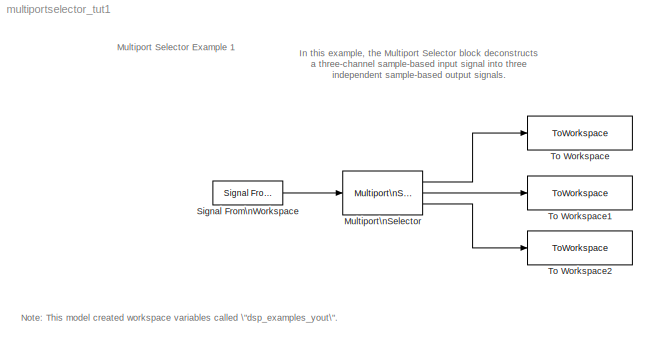
MODEL multiportselector_tut1
KIND model
CONFIG AbsTol = auto
CONFIG FixedStep = auto
CONFIG MaxStep = auto
CONFIG MinStep = auto
CONFIG PostLoadFcn = set_param(gcs,'SimulationCommand','Update')
CONFIG PreLoadFcn = dsp_examples_A = [1:10;1 1 0 0 1 1 0 0 1 1]';
CONFIG RelTol = 1e-3
CONFIG Solver = FixedStepDiscrete
CONFIG SolverMode = Auto
CONFIG StartTime = 0.0
CONFIG StopTime = 10.0
BLOCK [Reference] Multiport\nSelector  REF=dspindex/Multiport\nSelector
  Ports = [1, 3]
  SourceBlock = dspindex/Multiport\nSelector
  SourceType = Multiport Selector
  idxCellArray = { 1, 2, 3 }
  idxErrMode = Clip Index
  rowsOrCols = Rows
BLOCK [Reference] Signal From\nWorkspace  REF=dspsrcs4/Signal From\nWorkspace
  OutputAfterFinalValue = Setting to zero
  Ports = [0, 1]
  SourceBlock = dspsrcs4/Signal From\nWorkspace
  SourceType = Signal From Workspace
  Ts = 1
  X = randn(3,1,10)
  nsamps = 1
BLOCK [ToWorkspace] To Workspace
  MaxDataPoints = inf
  SampleTime = -1
  SaveFormat = Array
  VariableName = dsp_examples_yout
BLOCK [ToWorkspace] To Workspace1
  MaxDataPoints = inf
  SampleTime = -1
  SaveFormat = Array
  VariableName = dsp_examples_yout1
BLOCK [ToWorkspace] To Workspace2
  MaxDataPoints = inf
  SampleTime = -1
  SaveFormat = Array
  VariableName = dsp_examples_yout2
ANNOTATION (root): In this example, the Multiport Selector block deconstructs \na three-channel sample-based input signal into three \nindependent sample-based output signals.
ANNOTATION (root): Multiport Selector Example 1
ANNOTATION (root): Note: This model created workspace variables called \"dsp_examples_yout\".
LINE Multiport\nSelector:1 -> To Workspace:1
LINE Multiport\nSelector:2 -> To Workspace1:1
LINE Multiport\nSelector:3 -> To Workspace2:1
LINE Signal From\nWorkspace:1 -> Multiport\nSelector:1
